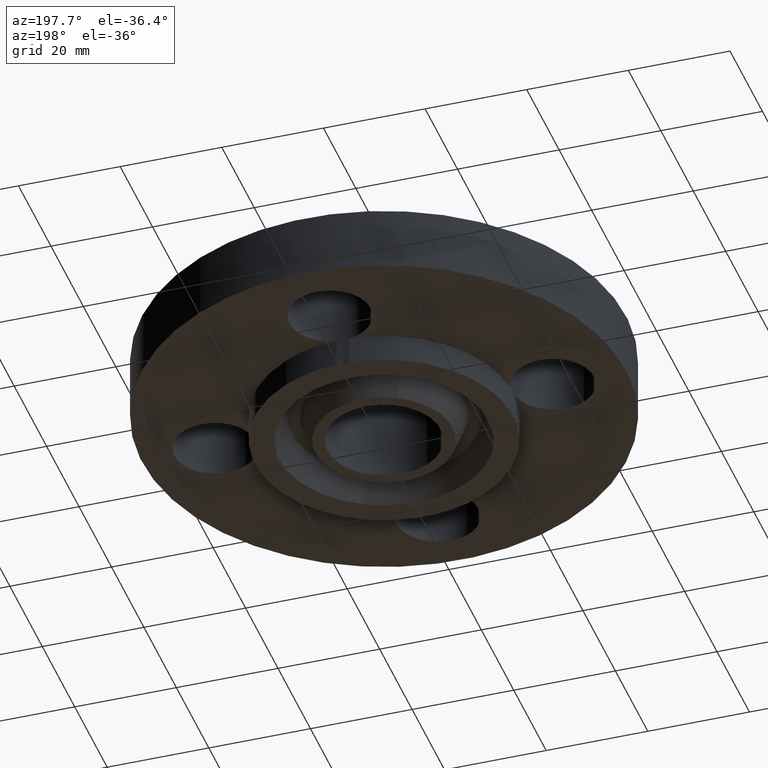
[diagram: clean part render]
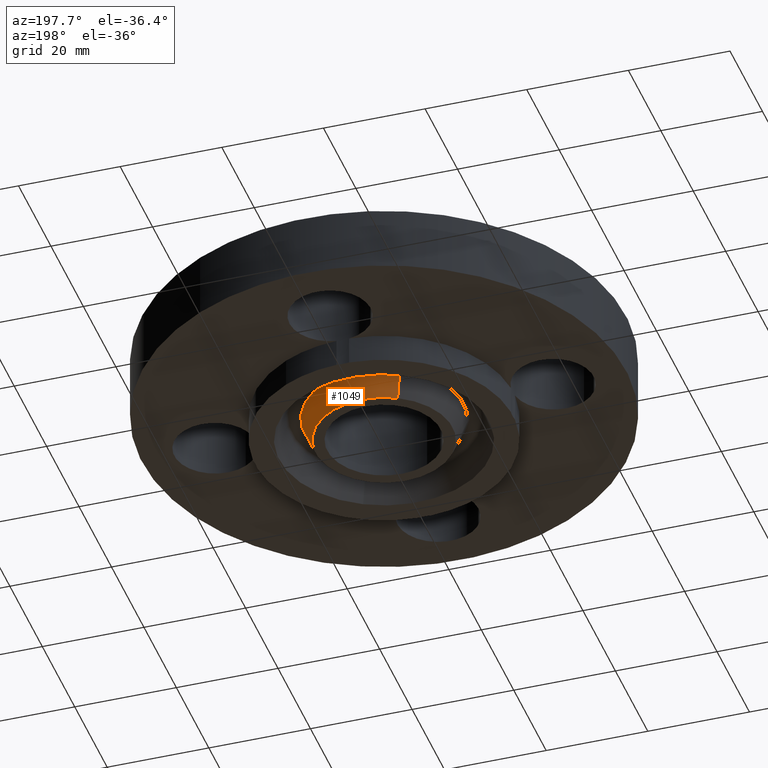
[diagram: same view with one face highlighted and labeled with its STEP entity id]
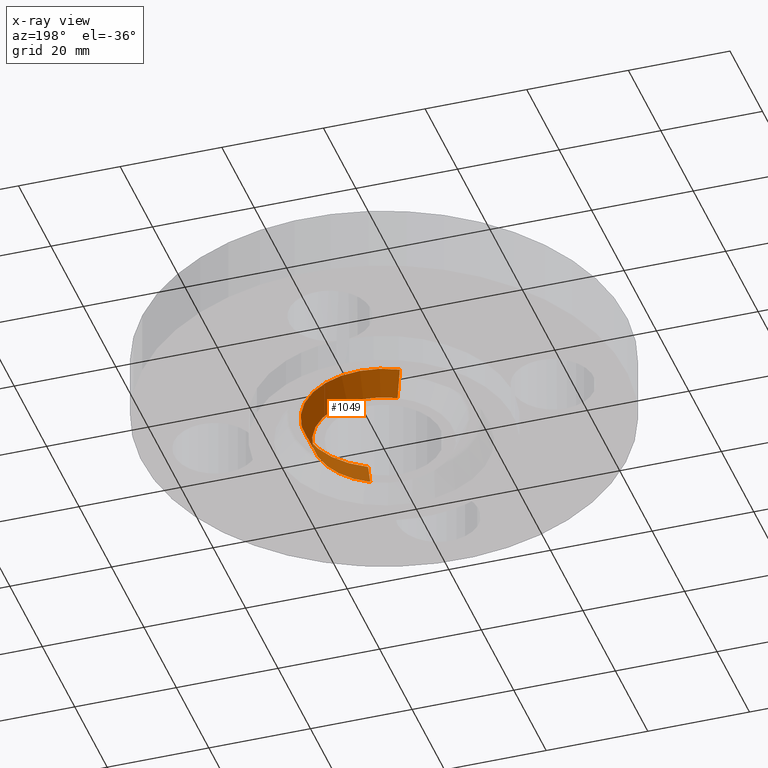
[diagram: x-ray of the same camera — body ghosted, the highlighted face saturated]
A machine part, auxiliary view. The second image highlights one B-rep face of the part: STEP entity #1049.
The next image is the same camera in x-ray: the body ghosted, the highlighted face saturated — about 0% of this face is hidden behind the body in this view.
In plain terms, the highlighted conical surface has half-angle 23 deg.
Its self-contained STEP definition (entity closure, byte-faithful):
#855=AXIS2_PLACEMENT_3D('Circle Axis2P3D',#853,#854,$) ;
#999=AXIS2_PLACEMENT_3D('Circle Axis2P3D',#997,#998,$) ;
#1031=AXIS2_PLACEMENT_3D('Cone Axis2P3D',#1028,#1029,#1030) ;
#853=CARTESIAN_POINT('Axis2P3D Location',(-1.39870617276E-016,0.,-0.218800000001)) ;
#857=CARTESIAN_POINT('Vertex',(-0.254694817385,0.466215736006,-0.218800000001)) ;
#859=CARTESIAN_POINT('Vertex',(0.254694817385,-0.466215736006,-0.218800000001)) ;
#994=CARTESIAN_POINT('Vertex',(0.295340661223,-0.54061745409,-0.0190701156784)) ;
#997=CARTESIAN_POINT('Axis2P3D Location',(0.,0.,-0.0190701156784)) ;
#1001=CARTESIAN_POINT('Vertex',(-0.295340661223,0.54061745409,-0.0190701156784)) ;
#1028=CARTESIAN_POINT('Axis2P3D Location',(0.,0.,-0.278800000001)) ;
#1033=CARTESIAN_POINT('Line Origine',(-0.275017739304,0.503416595048,-0.11893505784)) ;
#1038=CARTESIAN_POINT('Line Origine',(0.275017739304,-0.503416595048,-0.11893505784)) ;
#854=DIRECTION('Axis2P3D Direction',(0.,0.,-0.0393700787402)) ;
#998=DIRECTION('Axis2P3D Direction',(0.,0.,0.0393700787402)) ;
#1029=DIRECTION('Axis2P3D Direction',(0.,0.,0.0393700787402)) ;
#1030=DIRECTION('Axis2P3D XDirection',(-0.0188750212049,0.0345504945626,0.)) ;
#1034=DIRECTION('Vector Direction',(-0.00737505833565,0.0134999537303,0.0362403485611)) ;
#1039=DIRECTION('Vector Direction',(0.00737505833565,-0.0134999537303,0.0362403485611)) ;
#1035=VECTOR('Line Direction',#1034,0.0393700787402) ;
#1040=VECTOR('Line Direction',#1039,0.0393700787402) ;
#1044=ORIENTED_EDGE('',*,*,#1037,.F.) ;
#1045=ORIENTED_EDGE('',*,*,#1003,.F.) ;
#1046=ORIENTED_EDGE('',*,*,#1042,.T.) ;
#1047=ORIENTED_EDGE('',*,*,#861,.F.) ;
#1049=ADVANCED_FACE('PartBody',(#1048),#1032,.T.) ;
#856=CIRCLE('generated circle',#855,0.531250000002) ;
#1000=CIRCLE('generated circle',#999,0.616030305941) ;
#1032=CONICAL_SURFACE('Cone',#1031,0.505781511029,0.401425727959) ;
#861=EDGE_CURVE('',#858,#860,#856,.T.) ;
#1003=EDGE_CURVE('',#995,#1002,#1000,.T.) ;
#1037=EDGE_CURVE('',#1002,#858,#1036,.F.) ;
#1042=EDGE_CURVE('',#995,#860,#1041,.F.) ;
#1043=EDGE_LOOP('',(#1044,#1045,#1046,#1047)) ;
#1048=FACE_OUTER_BOUND('',#1043,.T.) ;
#1036=LINE('Line',#1033,#1035) ;
#1041=LINE('Line',#1038,#1040) ;
#858=VERTEX_POINT('',#857) ;
#860=VERTEX_POINT('',#859) ;
#995=VERTEX_POINT('',#994) ;
#1002=VERTEX_POINT('',#1001) ;